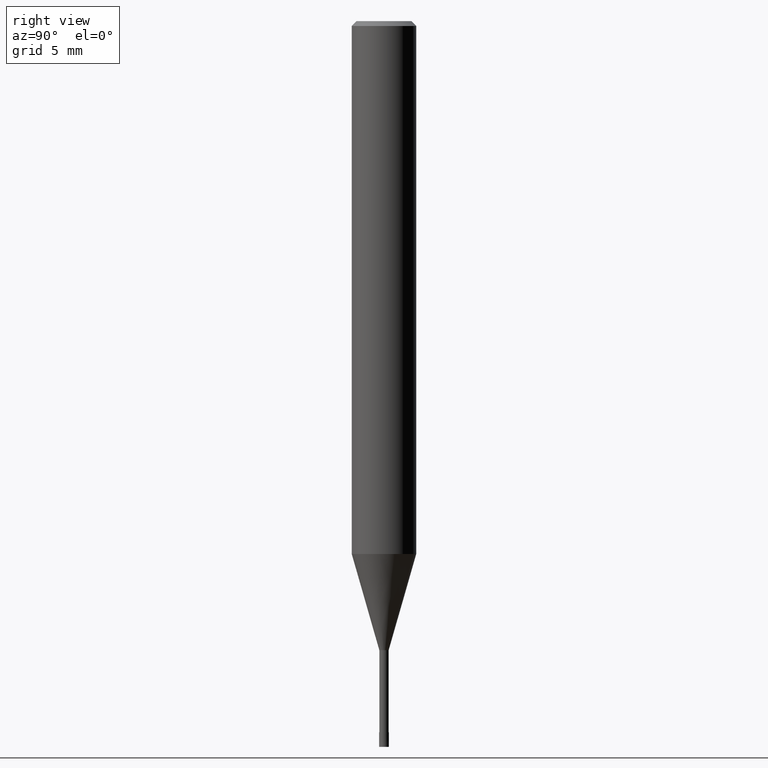
[diagram: clean part render]
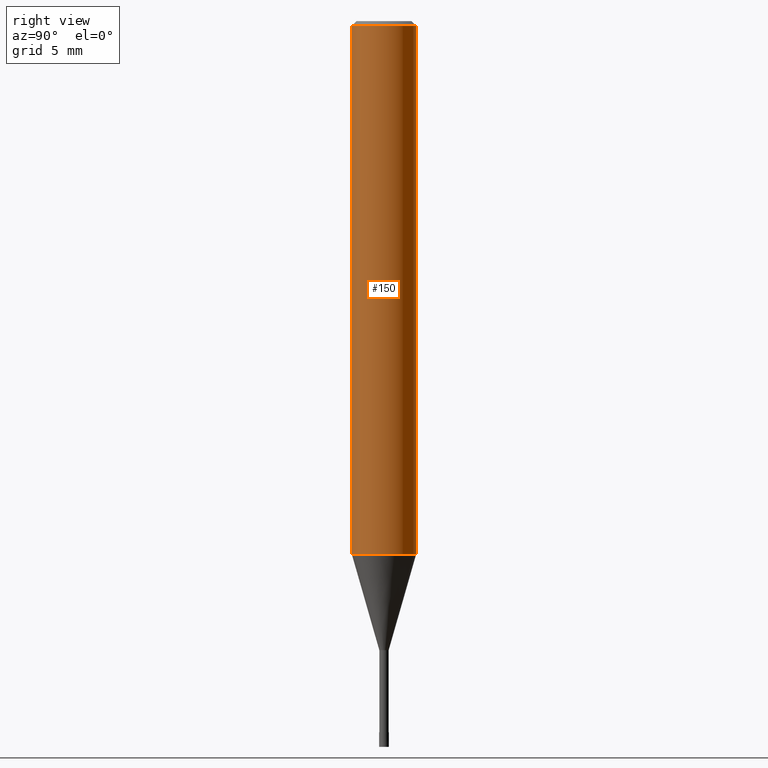
[diagram: same view with one face highlighted and labeled with its STEP entity id]
A machine part, right view. The second image highlights one B-rep face of the part: STEP entity #150.
In plain terms, the highlighted cylindrical surface (edge-blend (fillet) strip) has radius 2 mm, axis along (-0, -0, 1).
Its self-contained STEP definition (entity closure, byte-faithful):
#94=VERTEX_POINT('',#232);
#100=VERTEX_POINT('',#238);
#110=EDGE_CURVE('',#94,#188,#248,.T.);
#126=EDGE_CURVE('',#100,#188,#265,.T.);
#150=ADVANCED_FACE('',(#294),#295,.T.);
#152=VERTEX_POINT('',#297);
#156=EDGE_CURVE('',#152,#94,#301,.T.);
#170=EDGE_CURVE('',#100,#152,#318,.T.);
#188=VERTEX_POINT('',#338);
#232=CARTESIAN_POINT('',(2.44921270764475E-016,-2.0,-33.037));
#238=CARTESIAN_POINT('',(0.0,2.0,-0.299999999999997));
#248=LINE('',#399,#400);
#265=CIRCLE('',#421,2.0);
#294=FACE_OUTER_BOUND('',#459,.T.);
#295=CYLINDRICAL_SURFACE('',#460,2.0);
#297=CARTESIAN_POINT('',(0.0,2.0,-33.037));
#301=CIRCLE('',#468,2.0);
#318=LINE('',#490,#491);
#338=CARTESIAN_POINT('',(2.44921270764475E-016,-2.0,-0.299999999999997));
#399=CARTESIAN_POINT('',(2.44921270764475E-016,-2.0,-16.6685));
#400=VECTOR('',#560,1.0);
#421=AXIS2_PLACEMENT_3D('',#577,#578,#579);
#459=EDGE_LOOP('',(#620,#621,#622,#623));
#460=AXIS2_PLACEMENT_3D('',#624,#625,#626);
#468=AXIS2_PLACEMENT_3D('',#630,#631,#632);
#490=CARTESIAN_POINT('',(-2.44921270764475E-016,2.0,-16.6685));
#491=VECTOR('',#660,1.0);
#560=DIRECTION('',(-0.0,-0.0,1.0));
#577=CARTESIAN_POINT('',(0.0,0.0,-0.299999999999997));
#578=DIRECTION('',(0.0,0.0,-1.0));
#579=DIRECTION('',(0.0,1.0,0.0));
#620=ORIENTED_EDGE('',*,*,#170,.F.);
#621=ORIENTED_EDGE('',*,*,#126,.T.);
#622=ORIENTED_EDGE('',*,*,#110,.F.);
#623=ORIENTED_EDGE('',*,*,#156,.F.);
#624=CARTESIAN_POINT('',(0.0,0.0,-16.6685));
#625=DIRECTION('',(-0.0,-0.0,1.0));
#626=DIRECTION('',(0.0,1.0,0.0));
#630=CARTESIAN_POINT('',(0.0,0.0,-33.037));
#631=DIRECTION('',(0.0,0.0,-1.0));
#632=DIRECTION('',(0.0,1.0,0.0));
#660=DIRECTION('',(0.0,0.0,-1.0));